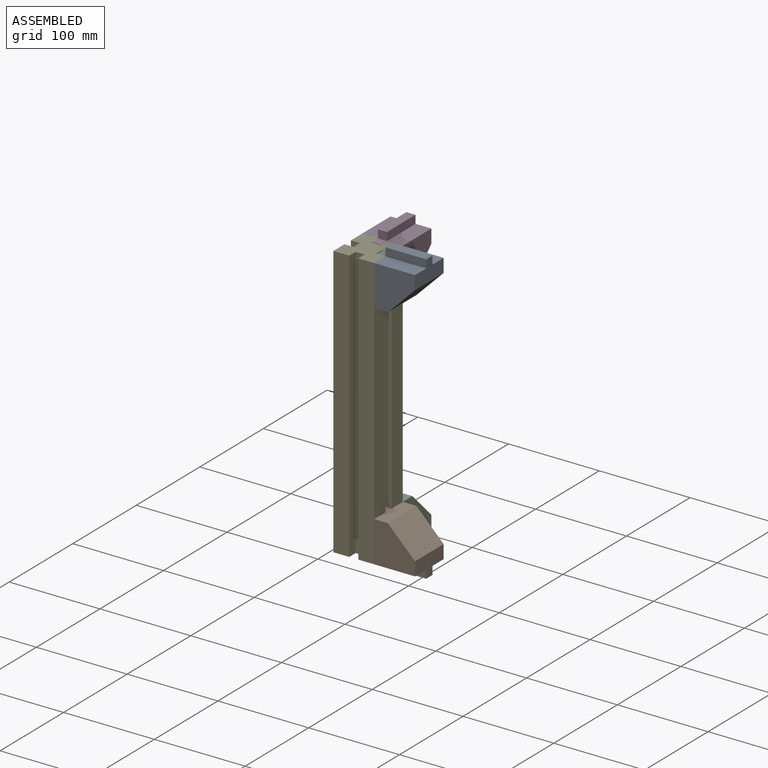
[diagram: assembled view]
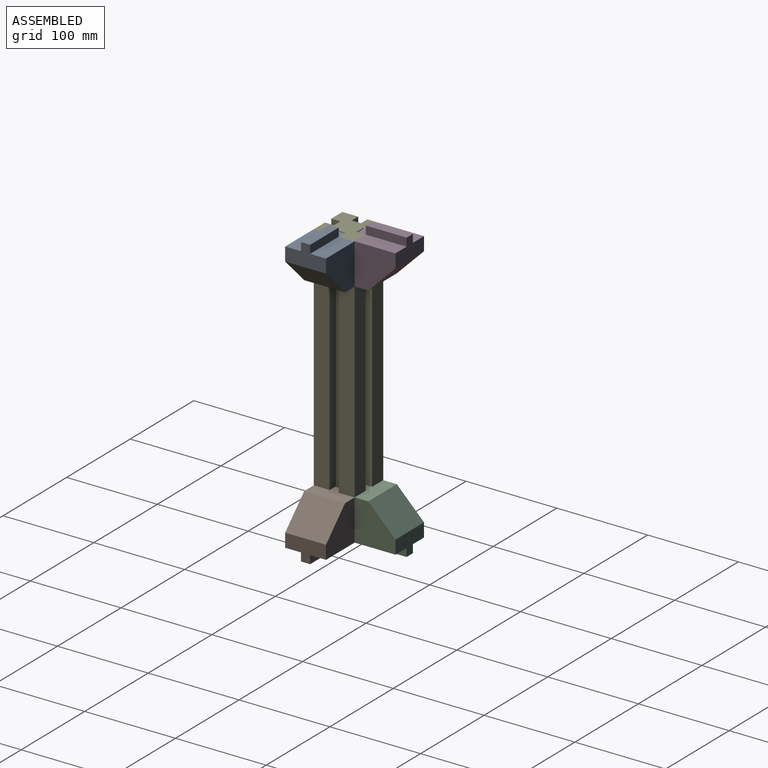
[diagram: assembled view, second angle]
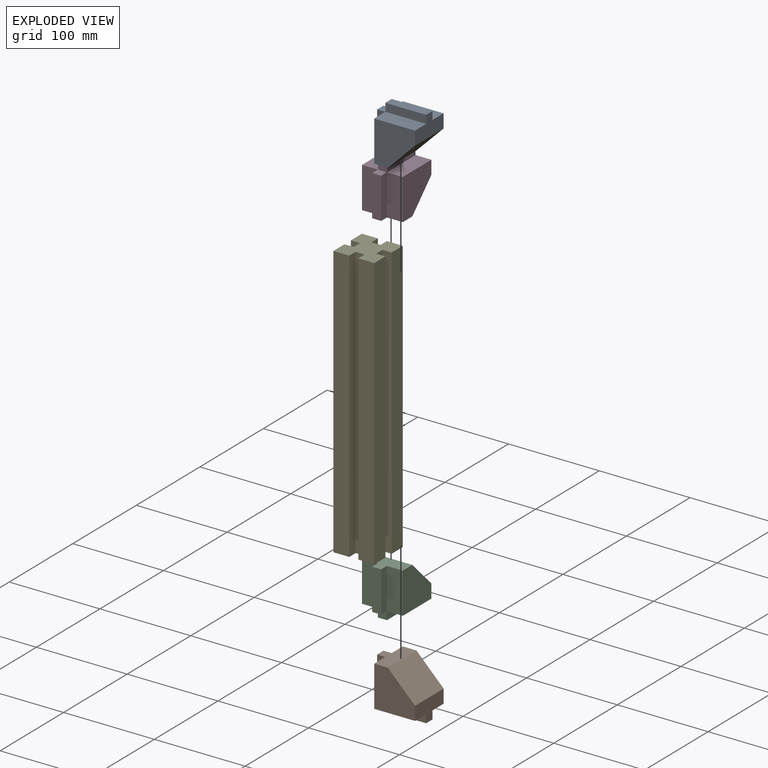
[diagram: exploded view]
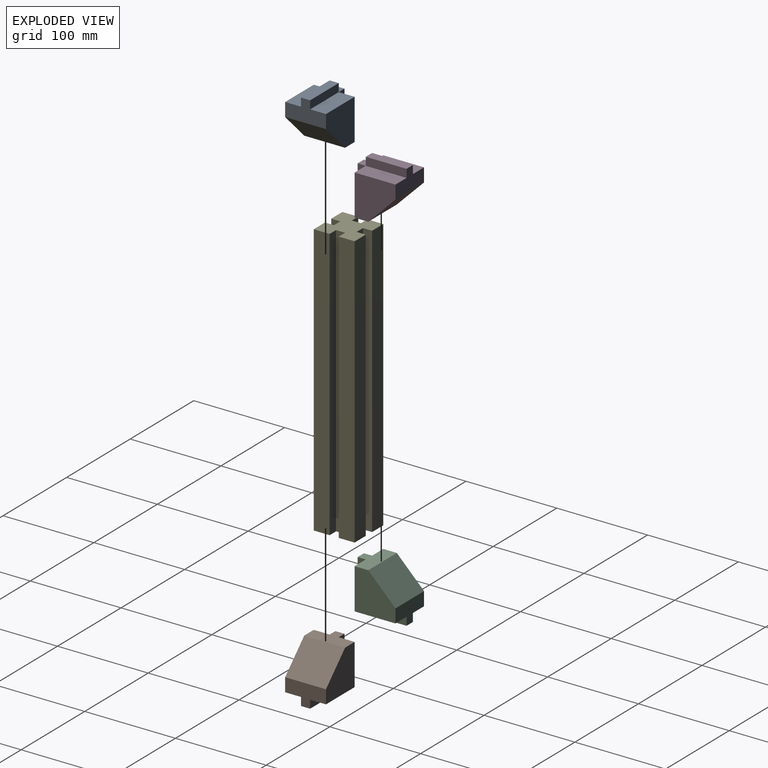
[diagram: exploded view, second angle]
ASSEMBLY  parts=5 mates=12
PART A: 17 faces, bbox 45x54x54 mm
  f0: plane 45x17.5mm, normal (0,1,0), area 787.5mm2, adj f2,f3,f6,f15
  f1: plane 10x9mm, normal (0,1,0), area 90mm2, adj f10,f11,f12,f14
  f2: plane 45x17.5mm, normal (0,0,-1), area 787.5mm2, adj f0,f3,f4,f10
  f3: plane 45x45mm, normal (-1,0,0), area 1575mm2, adj f0,f2,f4,f6,f9
  f4: plane 45x24mm, normal (0,-1,0), area 765mm2, adj f2,f3,f5,f8,f9,f10,f11,f12
  f5: plane 45x45mm, normal (1,0,0), area 1575mm2, adj f4,f6,f7,f8,f9
  f6: plane 45x24mm, normal (0,0,1), area 765mm2, adj f0,f3,f5,f7,f9,f13,f15,f16
  f7: plane 45x17.5mm, normal (0,1,0), area 787.5mm2, adj f5,f6,f8,f13
  f8: plane 45x17.5mm, normal (0,0,-1), area 787.5mm2, adj f4,f5,f7,f11
  f9: plane 45x30mm, normal (0,-0.71,0.71), area 1909.2mm2, adj f3,f4,f5,f6
  f10: plane 45x9mm, normal (-1,0,0), area 405mm2, adj f1,f2,f4,f12
  f11: plane 45x9mm, normal (1,0,0), area 405mm2, adj f1,f4,f8,f12
  f12: plane 45x10mm, normal (0,0,-1), area 450mm2, adj f1,f4,f10,f11
  f13: plane 45x9mm, normal (1,0,0), area 405mm2, adj f6,f7,f14,f16
  f14: plane 10x9mm, normal (0,0,-1), area 90mm2, adj f1,f13,f15,f16
  f15: plane 45x9mm, normal (-1,0,0), area 405mm2, adj f0,f6,f14,f16
  f16: plane 45x10mm, normal (0,1,0), area 450mm2, adj f6,f13,f14,f15
PART B: same geometry as A
PART C: same geometry as A
PART D: same geometry as A
PART E: 22 faces, bbox 45x45x300 mm
  f0: plane 300x17.5mm, normal (-1,0,0), area 5250mm2, adj f4,f5,f9,f19
  f1: plane 300x17.5mm, normal (0,-1,0), area 5250mm2, adj f4,f5,f8,f14
  f2: plane 300x17.5mm, normal (1,0,0), area 5250mm2, adj f3,f4,f5,f16
  f3: plane 300x17.5mm, normal (0,1,0), area 5250mm2, adj f2,f4,f5,f12
  f4: plane 45x45mm, normal (0,0,1), area 1625mm2, adj f0,f1,f2,f3,f6,f7,f8,f9
  f5: plane 45x45mm, normal (0,0,-1), area 1625mm2, adj f0,f1,f2,f3,f6,f7,f8,f9
  f6: plane 300x17.5mm, normal (-1,0,0), area 5250mm2, adj f4,f5,f7,f20
  f7: plane 300x17.5mm, normal (0,-1,0), area 5250mm2, adj f4,f5,f6,f13
  f8: plane 300x17.5mm, normal (1,0,0), area 5250mm2, adj f1,f4,f5,f18
  f9: plane 300x17.5mm, normal (0,1,0), area 5250mm2, adj f0,f4,f5,f10
  f10: plane 300x10mm, normal (1,0,0), area 3000mm2, adj f4,f5,f9,f11
  f11: plane 300x10mm, normal (0,1,0), area 3000mm2, adj f4,f5,f10,f12
  f12: plane 300x10mm, normal (-1,0,0), area 3000mm2, adj f3,f4,f5,f11
  f13: plane 300x10mm, normal (1,0,0), area 3000mm2, adj f4,f5,f7,f15
  f14: plane 300x10mm, normal (-1,0,0), area 3000mm2, adj f1,f4,f5,f15
  f15: plane 300x10mm, normal (0,-1,0), area 3000mm2, adj f4,f5,f13,f14
  f16: plane 300x10mm, normal (0,-1,0), area 3000mm2, adj f2,f4,f5,f17
  f17: plane 300x10mm, normal (1,0,0), area 3000mm2, adj f4,f5,f16,f18
  f18: plane 300x10mm, normal (0,1,0), area 3000mm2, adj f4,f5,f8,f17
  f19: plane 300x10mm, normal (0,-1,0), area 3000mm2, adj f0,f4,f5,f21
  f20: plane 300x10mm, normal (0,1,0), area 3000mm2, adj f4,f5,f6,f21
  f21: plane 300x10mm, normal (-1,0,0), area 3000mm2, adj f4,f5,f19,f20
PLACE A rot(axis=(0.71,-0.71,0),180deg) t=(-12.36,-12.76,276.51)mm
PLACE B rot(axis=(-0.58,0.58,-0.58),120deg) t=(-57.36,-12.76,21.51)mm
PLACE C rot(axis=(0,0,1),180deg) t=(-57.36,32.24,-23.49)mm
PLACE D rot(axis=(1,0,0),180deg) t=(-102.36,32.24,276.51)mm
PLACE E t=(-102.36,-57.76,-23.49)mm
MATE planar D.f7 <-> E.f3  axis (0,-1,0) through (-66.11,-12.76,254.01)mm
MATE planar C.f3 <-> E.f2  axis (1,0,0) through (-57.36,6.17,-4.57)mm
MATE planar A.f2 <-> E.f4  axis (0,0,1) through (-34.86,-21.51,276.51)mm
MATE planar D.f8 <-> E.f4  axis (0,0,1) through (-66.11,9.74,276.51)mm
MATE planar A.f5 <-> E.f1  axis (0,-1,0) through (-38.44,-57.76,257.58)mm
MATE planar B.f0 <-> E.f5  axis (0,0,-1) through (-34.86,-21.51,-23.49)mm
MATE planar B.f8 <-> E.f8  axis (-1,0,0) through (-57.36,-49.01,-0.99)mm
MATE planar C.f2 <-> E.f5  axis (0,0,-1) through (-66.11,9.74,-23.49)mm
MATE planar B.f5 <-> E.f7  axis (0,-1,0) through (-34.86,-57.76,-23.49)mm
MATE planar C.f7 <-> E.f3  axis (0,-1,0) through (-93.61,-12.76,-0.99)mm
MATE planar A.f7 <-> E.f8  axis (-1,0,0) through (-57.36,-49.01,254.01)mm
MATE planar D.f5 <-> E.f2  axis (1,0,0) through (-57.36,6.17,257.58)mm
